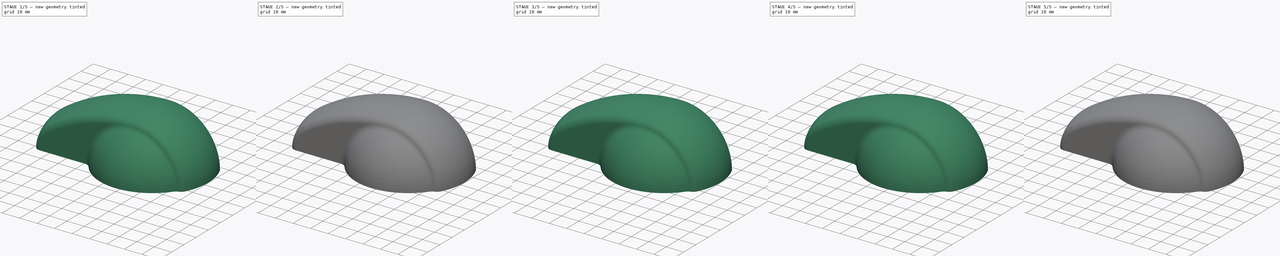
[diagram: build sequence overview — one tinted view per stage of 5, left to right]
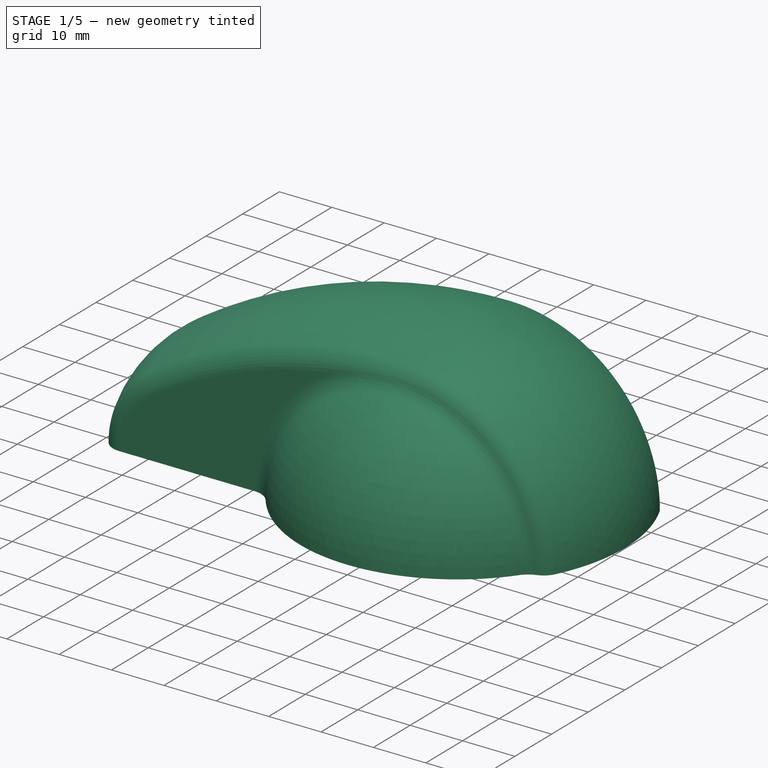
[diagram: stage 1 of 5 — iso view after this stage's code; geometry added in this stage tinted green]
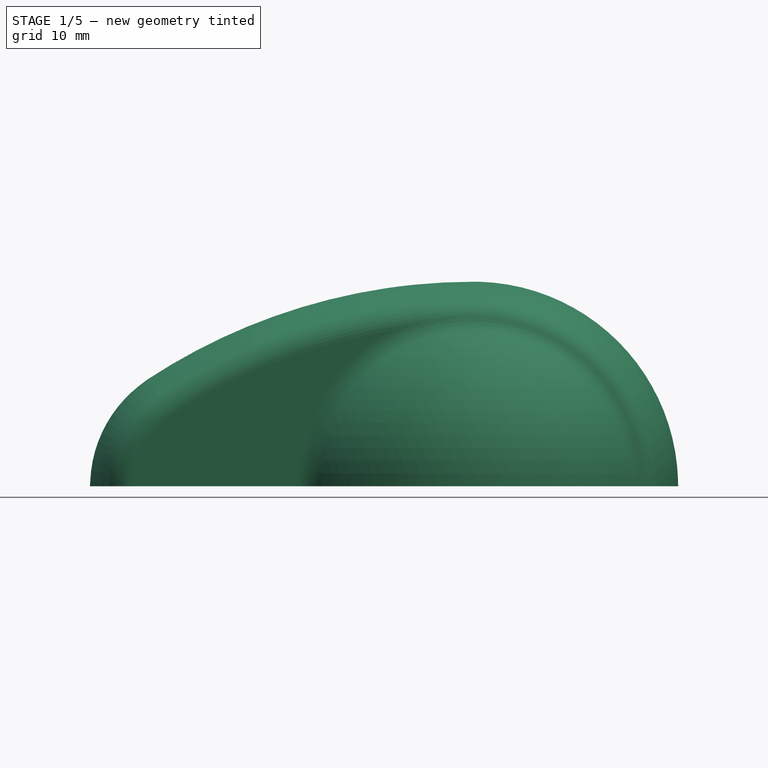
[diagram: stage 1 of 5 — front view after this stage's code; geometry added in this stage tinted green]
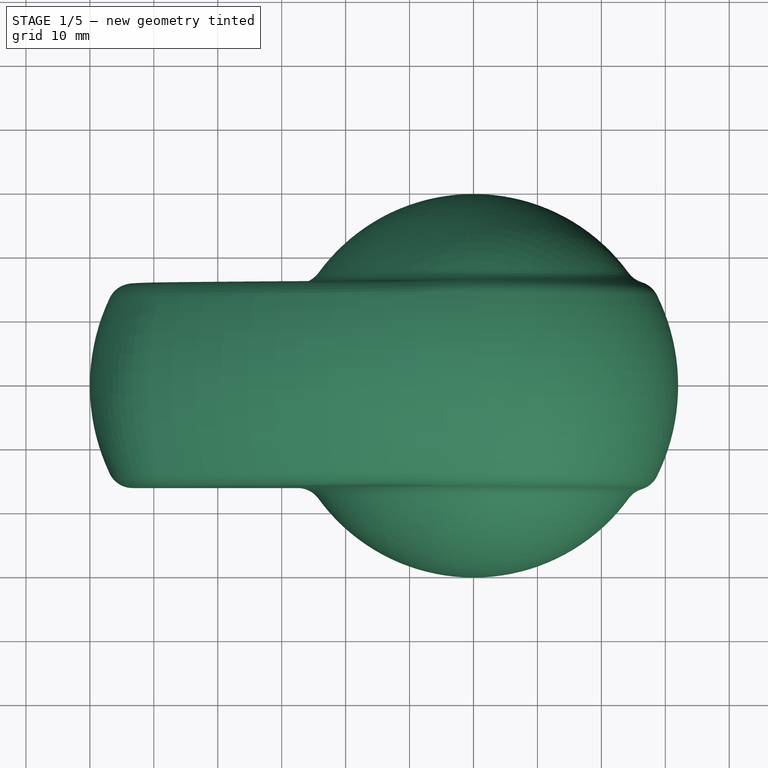
[diagram: stage 1 of 5 — top view after this stage's code; geometry added in this stage tinted green]
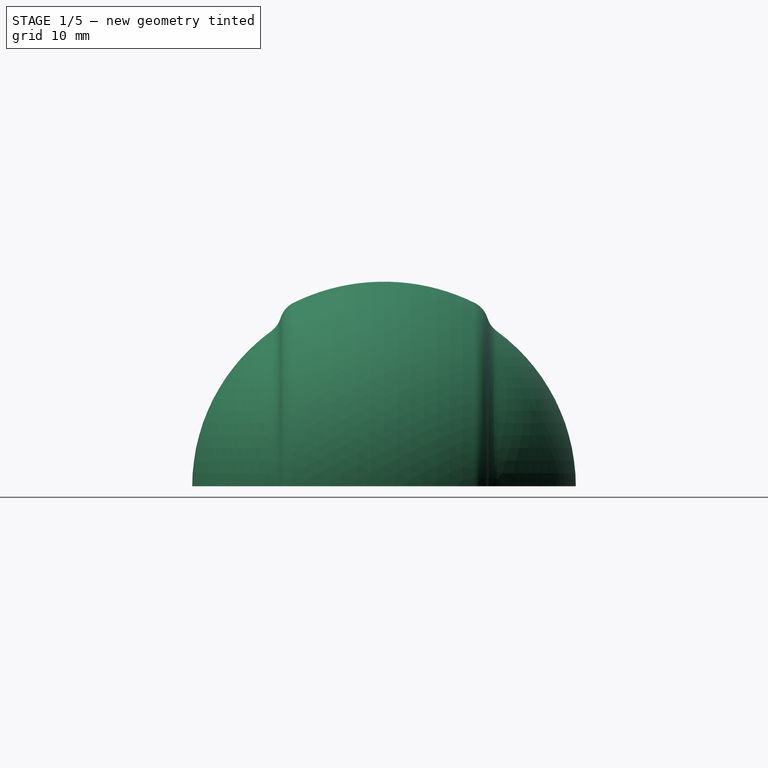
[diagram: stage 1 of 5 — right view after this stage's code; geometry added in this stage tinted green]
FCSTD DOCUMENT  (FreeCAD 1.0R39319 (Git))
Label: Mania2006-New
License: All rights reserved
LicenseURL: https://en.wikipedia.org/wiki/All_rights_reserved
objects: Sketcher::SketchObject×14, PartDesign::Fillet×9, PartDesign::Pad×6, PartDesign::Body×6, PartDesign::SubtractivePipe×4, PartDesign::AdditiveSphere×4, PartDesign::SubShapeBinder×4, PartDesign::Boolean×4, PartDesign::PolarPattern×1
note: 117 computed .brp shape members not serialized (recipe doc carries the construction recipe); baked Part::Feature solids carry a one-line shape summary decoded from their .brp

FEATURE [Sketcher::SketchObject] Sketch  label="SweepBase"
  ArcFitTolerance = 1e-06
  AttachmentSupport = -> [XZ_Plane]
  FullyConstrained = false
  MakeInternals = false
  MapMode = 5
  Placement = pos=(0,0,0) rot=(1,0,0;1.5708rad)
  sketch-geometry (3):
    g0: ArcOfCircle CenterX=0 CenterY=0 CenterZ=0 NormalX=0 NormalY=0 NormalZ=1 AngleXU=0 Radius=32 StartAngle=0 EndAngle=1.5708
    g1: ArcOfCircle CenterX=-40 CenterY=0 CenterZ=0 NormalX=0 NormalY=0 NormalZ=1 AngleXU=0 Radius=20 StartAngle=2.15371 EndAngle=3.14159
    g2: ArcOfCircle CenterX=0 CenterY=-60.6667 CenterZ=0 NormalX=0 NormalY=0 NormalZ=1 AngleXU=0 Radius=92.6667 StartAngle=1.5708 EndAngle=2.15371
  constraints (9):
    c: Coincident(g0,g-1)
    c: PointOnObject(g0,g-1)
    c: PointOnObject(g1,g-1)
    c: Radius(g0) = 32
    c: Radius(g1) = 20
    c: DistanceX(g1,g0) = 92
    c: Tangent(g2,g0) = -1.5708
    c: Tangent(g2,g1) = -1.5708
    c: PointOnObject(g2,g-2)
FEATURE [Sketcher::SketchObject] Sketch002  label="base"
  ArcFitTolerance = 1e-06
  AttachmentSupport = -> [XY_Plane]
  ExternalGeometry = -> [Sketch]
  FullyConstrained = true
  MakeInternals = false
  MapMode = 5
  sketch-geometry (4):
    g0: LineSegment StartX=32 StartY=-16 StartZ=0 EndX=32 EndY=16 EndZ=0
    g1: LineSegment StartX=32 StartY=16 StartZ=0 EndX=-60 EndY=16 EndZ=0
    g2: LineSegment StartX=-60 StartY=16 StartZ=0 EndX=-60 EndY=-16 EndZ=0
    g3: LineSegment StartX=-60 StartY=-16 StartZ=0 EndX=32 EndY=-16 EndZ=0
  constraints (11):
    c: Coincident(g0,g1)
    c: Coincident(g1,g2)
    c: Coincident(g2,g3)
    c: Coincident(g3,g0)
    c: Vertical(g2)
    c: Horizontal(g1)
    c: Horizontal(g3)
    c: Symmetric(g0,g0,g-1)
    c: PointOnObject(g-4,g0)
    c: DistanceY(g0,g0) = 32
    c: PointOnObject(g-3,g2)
FEATURE [PartDesign::Pad] Pad
  Direction = (0,0,1)
  Length = 40
  Length2 = 10
  Profile = -> Sketch002
  ReferenceAxis = -> Sketch002 [N_Axis]
  Refine = true
  Suppressed = false
  Type = 0
FEATURE [Sketcher::SketchObject] Sketch003  label="R32_Outline"
  ArcFitTolerance = 1e-06
  AttachmentSupport = -> [YZ_Plane]
  ExternalGeometry = -> [Sketch,Sketch002]
  FullyConstrained = true
  MakeInternals = false
  MapMode = 5
  Placement = pos=(0,0,0) rot=(0.57735,0.57735,0.57735;2.0944rad)
  sketch-geometry (4):
    g0: ArcOfCircle CenterX=0 CenterY=0 CenterZ=0 NormalX=0 NormalY=0 NormalZ=1 AngleXU=0 Radius=32 StartAngle=1.0472 EndAngle=2.0944
    g1: LineSegment StartX=-16 StartY=27.7128 StartZ=0 EndX=-16 EndY=70 EndZ=0
    g2: LineSegment StartX=16 StartY=27.7128 StartZ=0 EndX=16 EndY=70 EndZ=0
    g3: LineSegment StartX=-16 StartY=70 StartZ=0 EndX=16 EndY=70 EndZ=0
  constraints (12):
    c: Coincident(g0,g-1)
    c: Vertical(g0,g-5)
    c: Vertical(g0,g-4)
    c: PointOnObject(g-3,g0)
    c: Coincident(g1,g0)
    c: Vertical(g1)
    c: Coincident(g2,g0)
    c: Vertical(g2)
    c: Coincident(g3,g1)
    c: Coincident(g3,g2)
    c: Horizontal(g3)
    c: Distance(g-1,g3) = 70
FEATURE [PartDesign::SubtractivePipe] SubtractivePipe  label="R32Base"
  AuxilleryCurvelinear = true
  AuxillerySpineTangent = false
  BaseFeature = -> Pad
  Binormal = (0,0,0)
  Mode = 0
  Profile = -> Sketch003
  Refine = true
  Spine = -> Sketch
  SpineTangent = false
  Suppressed = false
  Transformation = 0
  Transition = 0
FEATURE [PartDesign::AdditiveSphere] Sphere  label="R30HalfSphere"
  Angle1 = 0
  Angle2 = 90
  Angle3 = 360
  AttacherType = Attacher::AttachEngine3D
  BaseFeature = -> SubtractivePipe
  Radius = 30
  Refine = true
  Suppressed = false
FEATURE [PartDesign::Fillet] Fillet  label="BaseFilletSphere4mm"
  Base = -> Sphere [Edge2,Edge18]
  BaseFeature = -> Sphere
  Radius = 4
  Refine = true
  SupportTransform = false
  Suppressed = false
  UseAllEdges = false
FEATURE [PartDesign::Fillet] Fillet001  label="BaseFillet4mm"
  Base = -> Fillet [Edge22,Edge5]
  BaseFeature = -> Fillet
  Radius = 4
  Refine = true
  SupportTransform = false
  Suppressed = false
  UseAllEdges = false
FEATURE [PartDesign::Body] Body002  label="RibBones"
  AllowCompound = false
  Group = -> [Sketch007,Pad002,Sketch008,Pad003,PolarPattern,Boolean]
  Origin = -> Origin002
  Tip = -> Boolean
FEATURE [PartDesign::Boolean] Boolean001
  Group = -> [Body]
  Refine = true
  Suppressed = false
  Type = 0
  UsePlacement = true
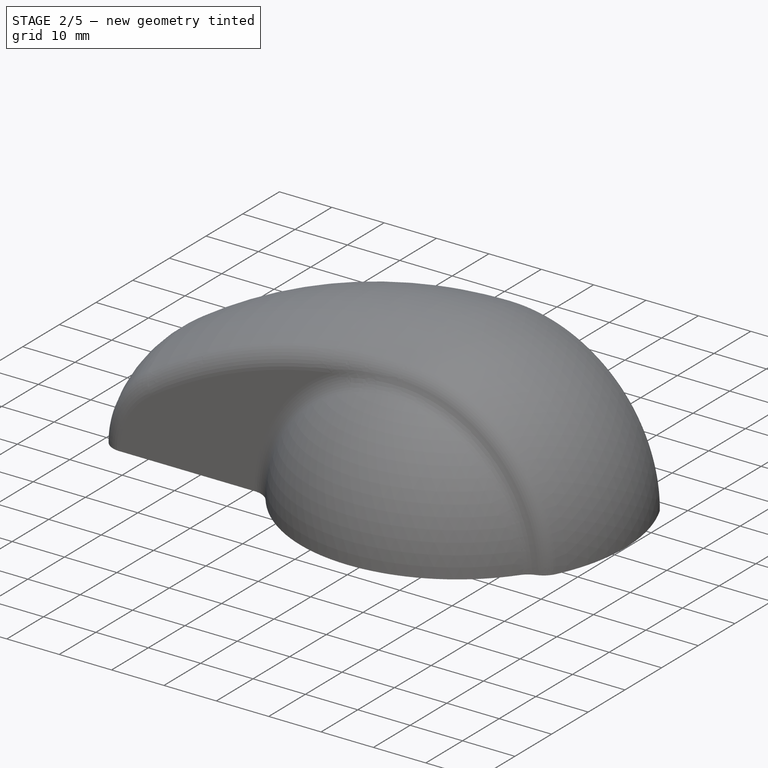
[diagram: stage 2 of 5 — iso view after this stage's code; geometry added in this stage tinted green]
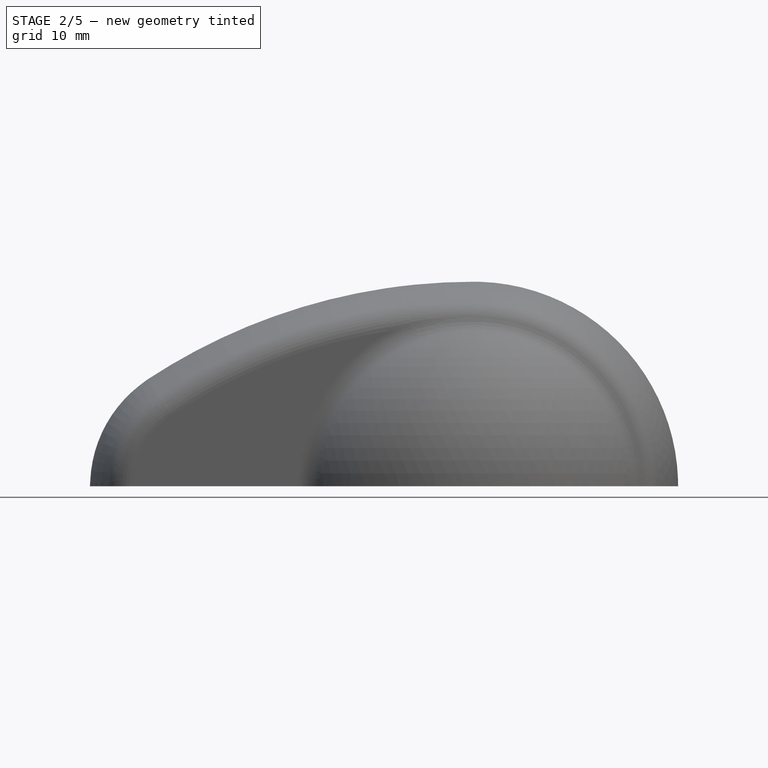
[diagram: stage 2 of 5 — front view after this stage's code; geometry added in this stage tinted green]
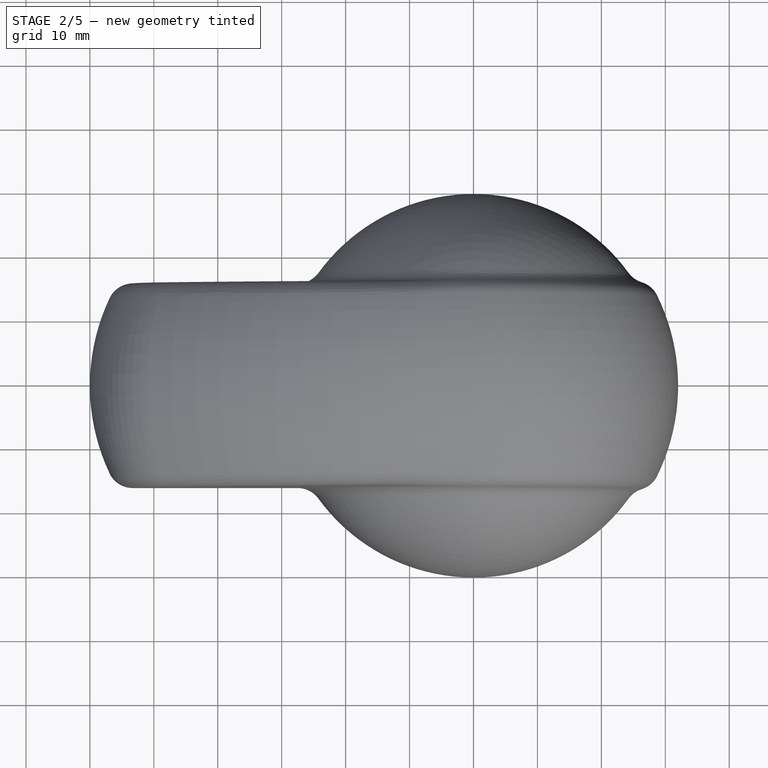
[diagram: stage 2 of 5 — top view after this stage's code; geometry added in this stage tinted green]
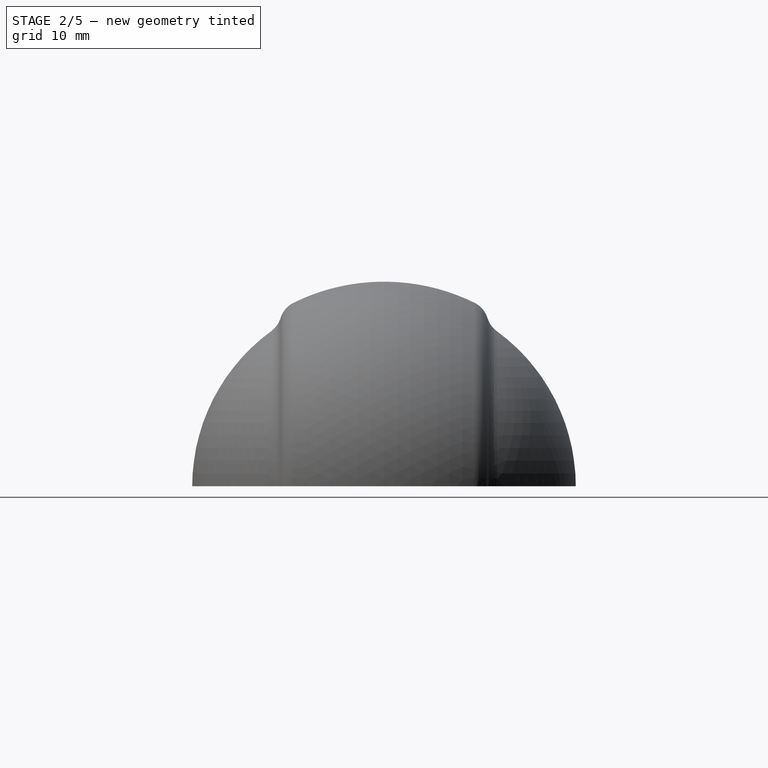
[diagram: stage 2 of 5 — right view after this stage's code; geometry added in this stage tinted green]
FEATURE [PartDesign::Body] Body  label="ShellOutline"
  AllowCompound = false
  Group = -> [Sketch,Sketch002,Pad,Sketch003,SubtractivePipe,Sphere,Fillet,Fillet001]
  Origin = -> Origin
  Tip = -> Fillet001
FEATURE [PartDesign::SubShapeBinder] Binder
  BindCopyOnChange = 0
  BindMode = 0
  ClaimChildren = false
  Context = -> Body001 [Binder.]
  Fuse = false
  MakeFace = true
  OffsetFill = false
  OffsetIntersection = false
  OffsetJoinType = 0
  OffsetOpenResult = false
  PartialLoad = false
  Refine = true
  Relative = true
  Support = -> [Body[Sketch002.]]
  _Version = 2
FEATURE [Sketcher::SketchObject] Sketch004
  ArcFitTolerance = 1e-06
  AttachmentSupport = -> [XY_Plane001]
  ExternalGeometry = -> [Binder]
  FullyConstrained = true
  MakeInternals = false
  MapMode = 5
  sketch-geometry (4):
    g0: LineSegment StartX=28 StartY=-12 StartZ=0 EndX=28 EndY=12 EndZ=0
    g1: LineSegment StartX=28 StartY=12 StartZ=0 EndX=-56 EndY=12 EndZ=0
    g2: LineSegment StartX=-56 StartY=12 StartZ=0 EndX=-56 EndY=-12 EndZ=0
    g3: LineSegment StartX=-56 StartY=-12 StartZ=0 EndX=28 EndY=-12 EndZ=0
  constraints (11):
    c: Coincident(g0,g1)
    c: Coincident(g1,g2)
    c: Coincident(g2,g3)
    c: Coincident(g3,g0)
    c: Vertical(g2)
    c: Horizontal(g1)
    c: Horizontal(g3)
    c: Symmetric(g0,g0,g-1)
    c: Distance(g-4,g1) = 4
    c: Distance(g-3,g0) = 4
    c: Distance(g-5,g2) = 4
FEATURE [PartDesign::Pad] Pad001
  Direction = (0,0,1)
  Length = 40
  Length2 = 10
  Profile = -> Sketch004
  ReferenceAxis = -> Sketch004 [N_Axis]
  Refine = true
  Suppressed = false
  Type = 0
FEATURE [PartDesign::SubShapeBinder] Binder001
  BindCopyOnChange = 0
  BindMode = 0
  ClaimChildren = false
  Context = -> Body001 [Binder001.]
  Fuse = false
  MakeFace = true
  OffsetFill = false
  OffsetIntersection = false
  OffsetJoinType = 0
  OffsetOpenResult = false
  PartialLoad = false
  Refine = true
  Relative = true
  Support = -> [Body[Sketch.]]
  _Version = 2
FEATURE [Sketcher::SketchObject] Sketch005
  ArcFitTolerance = 1e-06
  AttachmentSupport = -> [XZ_Plane001]
  ExternalGeometry = -> [Binder001]
  FullyConstrained = true
  MakeInternals = false
  MapMode = 5
  Placement = pos=(0,0,0) rot=(1,0,0;1.5708rad)
  sketch-geometry (3):
    g0: ArcOfCircle CenterX=0 CenterY=0 CenterZ=0 NormalX=0 NormalY=0 NormalZ=1 AngleXU=0 Radius=28 StartAngle=0 EndAngle=1.5708
    g1: ArcOfCircle CenterX=-40 CenterY=0 CenterZ=0 NormalX=0 NormalY=0 NormalZ=1 AngleXU=0 Radius=16 StartAngle=2.15371 EndAngle=3.14159
    g2: ArcOfCircle CenterX=-4.4085e-11 CenterY=-60.6667 CenterZ=0 NormalX=0 NormalY=0 NormalZ=1 AngleXU=0 Radius=88.6667 StartAngle=1.5708 EndAngle=2.15371
  constraints (9):
    c: PointOnObject(g0,g-1)
    c: DistanceX(g0,g-3) = 4
    c: PointOnObject(g0,g-2)
    c: Coincident(g0,g-1)
    c: Coincident(g1,g-5)
    c: PointOnObject(g1,g-1)
    c: DistanceX(g-5,g1) = 4
    c: Tangent(g2,g1) = -1.5708
    c: Tangent(g2,g0) = -1.5708
FEATURE [Sketcher::SketchObject] Sketch006
  ArcFitTolerance = 1e-06
  AttachmentSupport = -> [YZ_Plane001]
  ExternalGeometry = -> [Sketch005,Sketch004]
  FullyConstrained = true
  MakeInternals = false
  MapMode = 5
  Placement = pos=(0,0,0) rot=(0.57735,0.57735,0.57735;2.0944rad)
  sketch-geometry (4):
    g0: ArcOfCircle CenterX=0 CenterY=0 CenterZ=0 NormalX=0 NormalY=0 NormalZ=1 AngleXU=0 Radius=28 StartAngle=1.12789 EndAngle=2.01371
    g1: LineSegment StartX=-12 StartY=25.2982 StartZ=0 EndX=-12 EndY=55.2982 EndZ=0
    g2: LineSegment StartX=-12 StartY=55.2982 StartZ=0 EndX=12 EndY=55.2982 EndZ=0
    g3: LineSegment StartX=12 StartY=55.2982 StartZ=0 EndX=12 EndY=25.2982 EndZ=0
  constraints (12):
    c: Vertical(g0,g-4)
    c: PointOnObject(g-3,g0)
    c: Vertical(g0,g-4)
    c: Coincident(g0,g-1)
    c: Coincident(g0,g1)
    c: Coincident(g1,g2)
    c: Horizontal(g2)
    c: Coincident(g2,g3)
    c: Coincident(g3,g0)
    c: Vertical(g1)
    c: Vertical(g3)
    c: DistanceY(g3,g3) = 30
FEATURE [PartDesign::SubtractivePipe] SubtractivePipe001
  AuxilleryCurvelinear = true
  AuxillerySpineTangent = false
  BaseFeature = -> Pad001
  Binormal = (0,0,0)
  Mode = 0
  Profile = -> Sketch006
  Refine = true
  Spine = -> Sketch005
  SpineTangent = false
  Suppressed = false
  Transformation = 0
  Transition = 0
FEATURE [PartDesign::AdditiveSphere] Sphere001
  Angle1 = 0
  Angle2 = 90
  Angle3 = 360
  AttacherType = Attacher::AttachEngine3D
  BaseFeature = -> SubtractivePipe001
  Radius = 26
  Refine = true
  Suppressed = false
  expr: Radius = <<R30HalfSphere>>.Radius - 4 mm
FEATURE [PartDesign::Fillet] Fillet002
  Base = -> Sphere001 [Edge18,Edge2]
  BaseFeature = -> Sphere001
  Radius = 3
  Refine = true
  SupportTransform = false
  Suppressed = false
  UseAllEdges = false
FEATURE [PartDesign::Fillet] Fillet003
  Base = -> Fillet002 [Edge5,Edge22]
  BaseFeature = -> Fillet002
  Radius = 3
  Refine = true
  SupportTransform = false
  Suppressed = false
  UseAllEdges = false
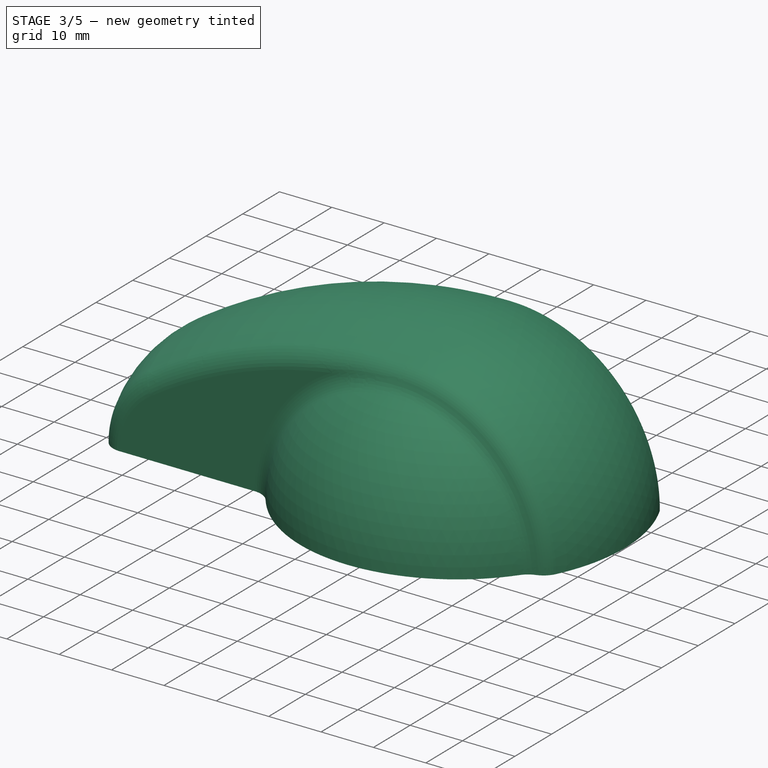
[diagram: stage 3 of 5 — iso view after this stage's code; geometry added in this stage tinted green]
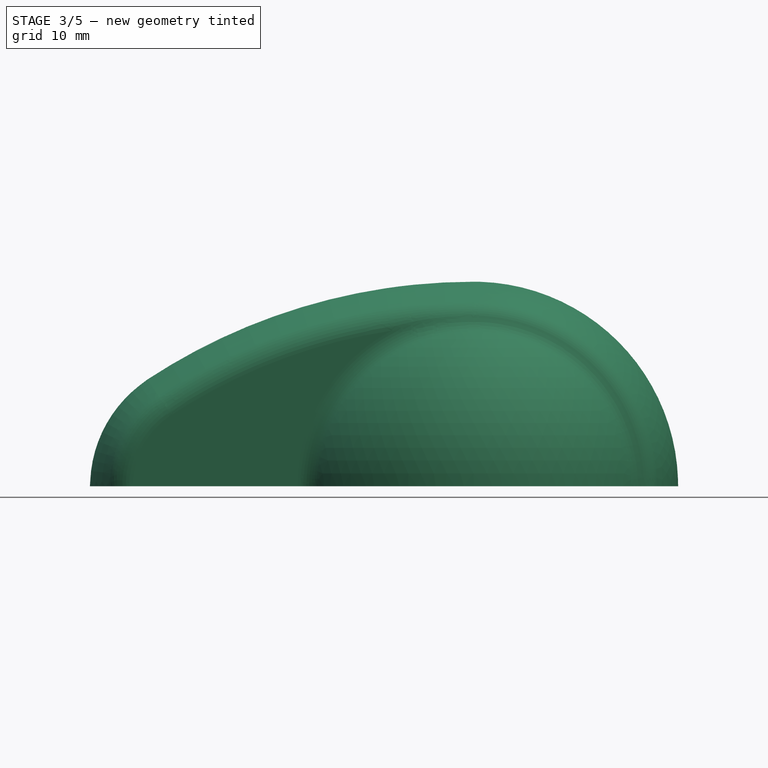
[diagram: stage 3 of 5 — front view after this stage's code; geometry added in this stage tinted green]
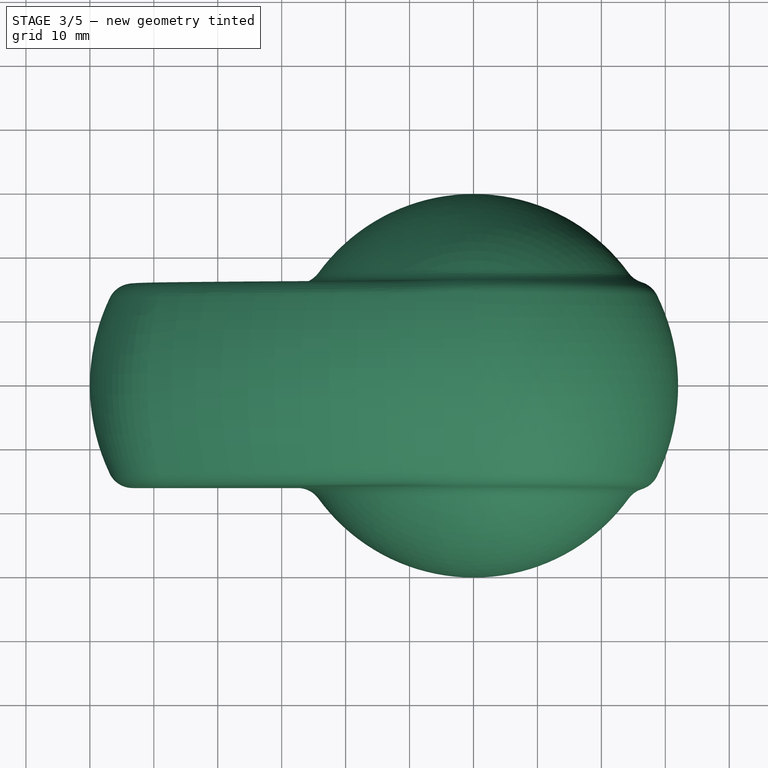
[diagram: stage 3 of 5 — top view after this stage's code; geometry added in this stage tinted green]
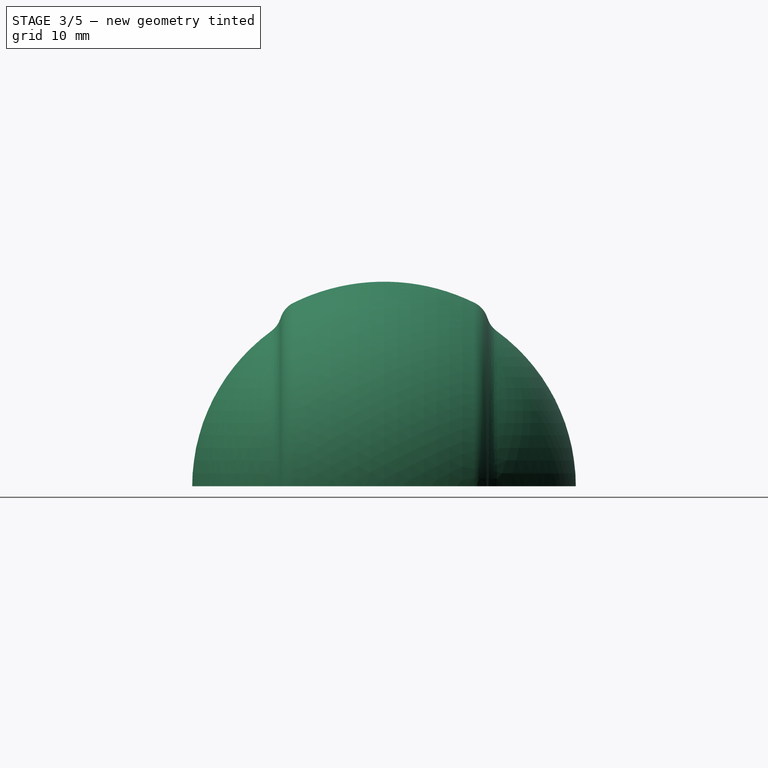
[diagram: stage 3 of 5 — right view after this stage's code; geometry added in this stage tinted green]
FEATURE [PartDesign::SubShapeBinder] Binder002
  BindCopyOnChange = 0
  BindMode = 0
  ClaimChildren = false
  Context = -> Body005 [Boolean003.Body002.Boolean.Body004.Binder002.]
  Fuse = false
  MakeFace = true
  OffsetFill = false
  OffsetIntersection = false
  OffsetJoinType = 0
  OffsetOpenResult = false
  PartialLoad = false
  Refine = true
  Relative = true
  Support = -> [Body003[Sketch010.]]
  _Version = 2
FEATURE [PartDesign::SubShapeBinder] Binder003
  BindCopyOnChange = 0
  BindMode = 0
  ClaimChildren = false
  Context = -> Body005 [Boolean003.Body002.Boolean.Body004.Binder003.]
  Fuse = false
  MakeFace = true
  OffsetFill = false
  OffsetIntersection = false
  OffsetJoinType = 0
  OffsetOpenResult = false
  PartialLoad = false
  Refine = true
  Relative = true
  Support = -> [Body003[Sketch009.]]
  _Version = 2
FEATURE [Sketcher::SketchObject] Sketch009  label="SweepBase001"
  ArcFitTolerance = 1e-06
  AttachmentSupport = -> [XZ_Plane003]
  FullyConstrained = false
  MakeInternals = false
  MapMode = 5
  Placement = pos=(0,0,0) rot=(1,0,0;1.5708rad)
  sketch-geometry (3):
    g0: ArcOfCircle CenterX=0 CenterY=0 CenterZ=0 NormalX=0 NormalY=0 NormalZ=1 AngleXU=0 Radius=32 StartAngle=0 EndAngle=1.5708
    g1: ArcOfCircle CenterX=-40 CenterY=0 CenterZ=0 NormalX=0 NormalY=0 NormalZ=1 AngleXU=0 Radius=20 StartAngle=2.15371 EndAngle=3.14159
    g2: ArcOfCircle CenterX=0 CenterY=-60.6667 CenterZ=0 NormalX=0 NormalY=0 NormalZ=1 AngleXU=0 Radius=92.6667 StartAngle=1.5708 EndAngle=2.15371
  constraints (9):
    c: Coincident(g0,g-1)
    c: PointOnObject(g0,g-1)
    c: PointOnObject(g1,g-1)
    c: Radius(g0) = 32
    c: Radius(g1) = 20
    c: DistanceX(g1,g0) = 92
    c: Tangent(g2,g0) = -1.5708
    c: Tangent(g2,g1) = -1.5708
    c: PointOnObject(g2,g-2)
FEATURE [Sketcher::SketchObject] Sketch010  label="base001"
  ArcFitTolerance = 1e-06
  AttachmentSupport = -> [XY_Plane003]
  ExternalGeometry = -> [Sketch009]
  FullyConstrained = true
  MakeInternals = false
  MapMode = 5
  sketch-geometry (4):
    g0: LineSegment StartX=32 StartY=-16 StartZ=0 EndX=32 EndY=16 EndZ=0
    g1: LineSegment StartX=32 StartY=16 StartZ=0 EndX=-60 EndY=16 EndZ=0
    g2: LineSegment StartX=-60 StartY=16 StartZ=0 EndX=-60 EndY=-16 EndZ=0
    g3: LineSegment StartX=-60 StartY=-16 StartZ=0 EndX=32 EndY=-16 EndZ=0
  constraints (11):
    c: Coincident(g0,g1)
    c: Coincident(g1,g2)
    c: Coincident(g2,g3)
    c: Coincident(g3,g0)
    c: Vertical(g2)
    c: Horizontal(g1)
    c: Horizontal(g3)
    c: Symmetric(g0,g0,g-1)
    c: PointOnObject(g-4,g0)
    c: DistanceY(g0,g0) = 32
    c: PointOnObject(g-3,g2)
FEATURE [PartDesign::Pad] Pad004
  Direction = (0,0,1)
  Length = 40
  Length2 = 10
  Profile = -> Sketch010
  ReferenceAxis = -> Sketch010 [N_Axis]
  Refine = true
  Suppressed = false
  Type = 0
FEATURE [Sketcher::SketchObject] Sketch013
  ArcFitTolerance = 1e-06
  AttachmentSupport = -> [XZ_Plane004]
  ExternalGeometry = -> [Binder003]
  FullyConstrained = true
  MakeInternals = false
  MapMode = 5
  Placement = pos=(0,0,0) rot=(1,0,0;1.5708rad)
  sketch-geometry (3):
    g0: ArcOfCircle CenterX=0 CenterY=0 CenterZ=0 NormalX=0 NormalY=0 NormalZ=1 AngleXU=0 Radius=28 StartAngle=0 EndAngle=1.5708
    g1: ArcOfCircle CenterX=-40 CenterY=0 CenterZ=0 NormalX=0 NormalY=0 NormalZ=1 AngleXU=0 Radius=16 StartAngle=2.15371 EndAngle=3.14159
    g2: ArcOfCircle CenterX=-4.4085e-11 CenterY=-60.6667 CenterZ=0 NormalX=0 NormalY=0 NormalZ=1 AngleXU=0 Radius=88.6667 StartAngle=1.5708 EndAngle=2.15371
  constraints (9):
    c: PointOnObject(g0,g-1)
    c: DistanceX(g0,g-3) = 4
    c: PointOnObject(g0,g-2)
    c: Coincident(g0,g-1)
    c: Coincident(g1,g-5)
    c: PointOnObject(g1,g-1)
    c: DistanceX(g-5,g1) = 4
    c: Tangent(g2,g1) = -1.5708
    c: Tangent(g2,g0) = -1.5708
FEATURE [Sketcher::SketchObject] Sketch014
  ArcFitTolerance = 1e-06
  AttachmentSupport = -> [YZ_Plane004]
  ExternalGeometry = -> [Sketch013,Sketch012]
  FullyConstrained = true
  MakeInternals = false
  MapMode = 5
  Placement = pos=(0,0,0) rot=(0.57735,0.57735,0.57735;2.0944rad)
  sketch-geometry (4):
    g0: ArcOfCircle CenterX=0 CenterY=0 CenterZ=0 NormalX=0 NormalY=0 NormalZ=1 AngleXU=0 Radius=28 StartAngle=1.12789 EndAngle=2.01371
    g1: LineSegment StartX=-12 StartY=25.2982 StartZ=0 EndX=-12 EndY=55.2982 EndZ=0
    g2: LineSegment StartX=-12 StartY=55.2982 StartZ=0 EndX=12 EndY=55.2982 EndZ=0
    g3: LineSegment StartX=12 StartY=55.2982 StartZ=0 EndX=12 EndY=25.2982 EndZ=0
  constraints (12):
    c: Vertical(g0,g-4)
    c: PointOnObject(g-3,g0)
    c: Vertical(g0,g-4)
    c: Coincident(g0,g-1)
    c: Coincident(g0,g1)
    c: Coincident(g1,g2)
    c: Horizontal(g2)
    c: Coincident(g2,g3)
    c: Coincident(g3,g0)
    c: Vertical(g1)
    c: Vertical(g3)
    c: DistanceY(g3,g3) = 30
FEATURE [PartDesign::SubtractivePipe] SubtractivePipe002  label="R32Base001"
  AuxilleryCurvelinear = true
  AuxillerySpineTangent = false
  BaseFeature = -> Pad004
  Binormal = (0,0,0)
  Mode = 0
  Profile = -> Sketch011
  Refine = true
  Spine = -> Sketch009
  SpineTangent = false
  Suppressed = false
  Transformation = 0
  Transition = 0
FEATURE [PartDesign::AdditiveSphere] Sphere002  label="R30HalfSphere001"
  Angle1 = 0
  Angle2 = 90
  Angle3 = 360
  AttacherType = Attacher::AttachEngine3D
  BaseFeature = -> SubtractivePipe002
  Radius = 30
  Refine = true
  Suppressed = false
FEATURE [PartDesign::Fillet] Fillet004  label="BaseFilletSphere4mm001"
  Base = -> Sphere002 [Edge2,Edge18]
  BaseFeature = -> Sphere002
  Radius = 4
  Refine = true
  SupportTransform = false
  Suppressed = false
  UseAllEdges = false
FEATURE [PartDesign::Fillet] Fillet005  label="BaseFillet4mm001"
  Base = -> Fillet004 [Edge22,Edge5]
  BaseFeature = -> Fillet004
  Radius = 4
  Refine = true
  SupportTransform = false
  Suppressed = false
  UseAllEdges = false
FEATURE [PartDesign::Boolean] Boolean002
  BaseFeature = -> Boolean001
  Group = -> [Body001]
  Refine = true
  Suppressed = false
  Type = 1
  UsePlacement = true
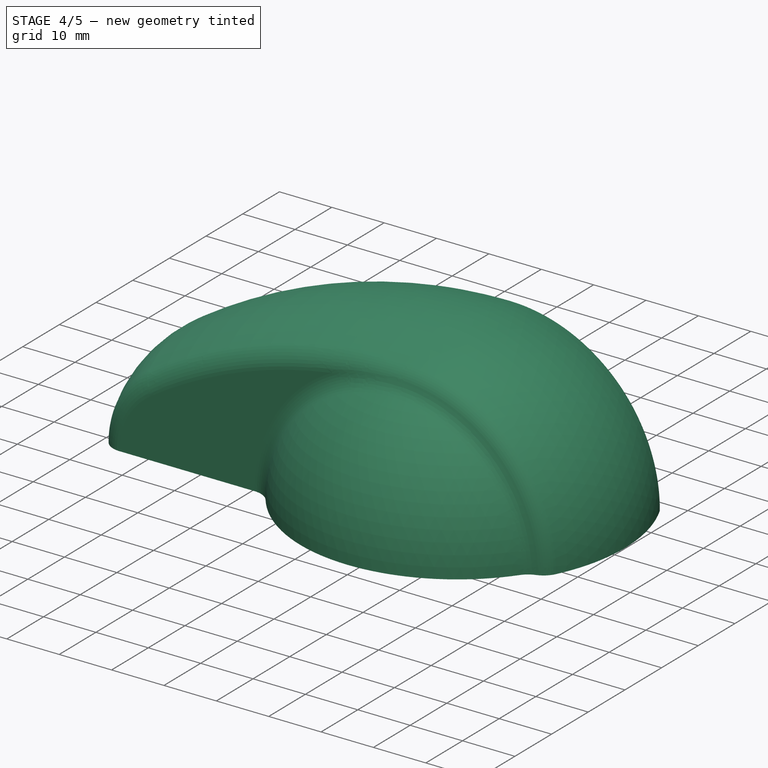
[diagram: stage 4 of 5 — iso view after this stage's code; geometry added in this stage tinted green]
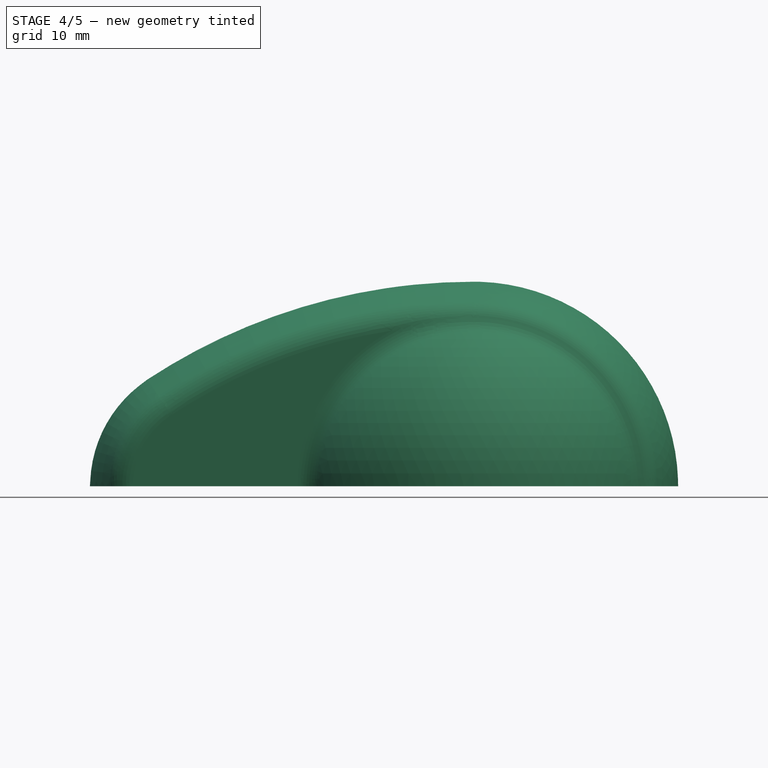
[diagram: stage 4 of 5 — front view after this stage's code; geometry added in this stage tinted green]
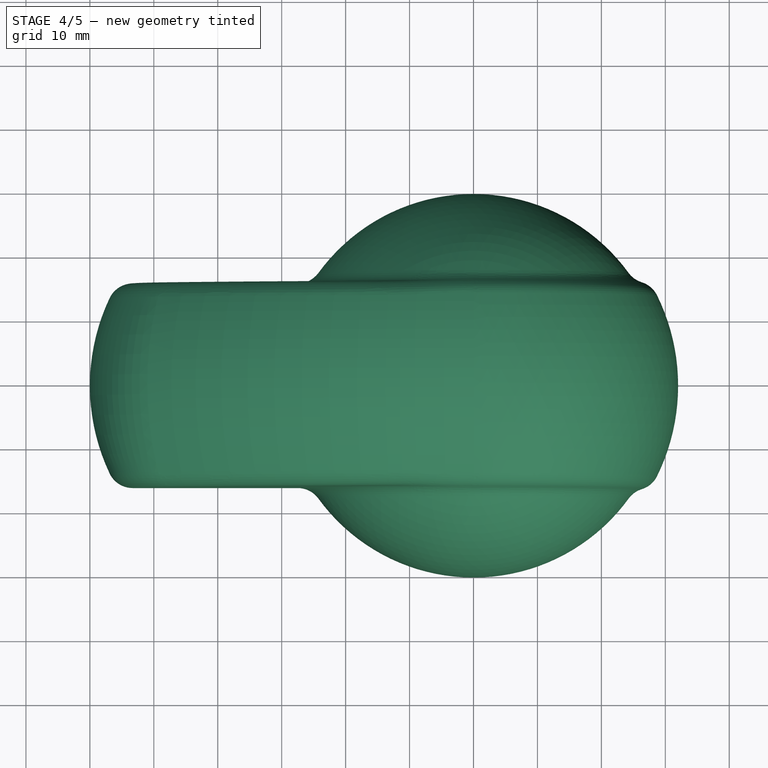
[diagram: stage 4 of 5 — top view after this stage's code; geometry added in this stage tinted green]
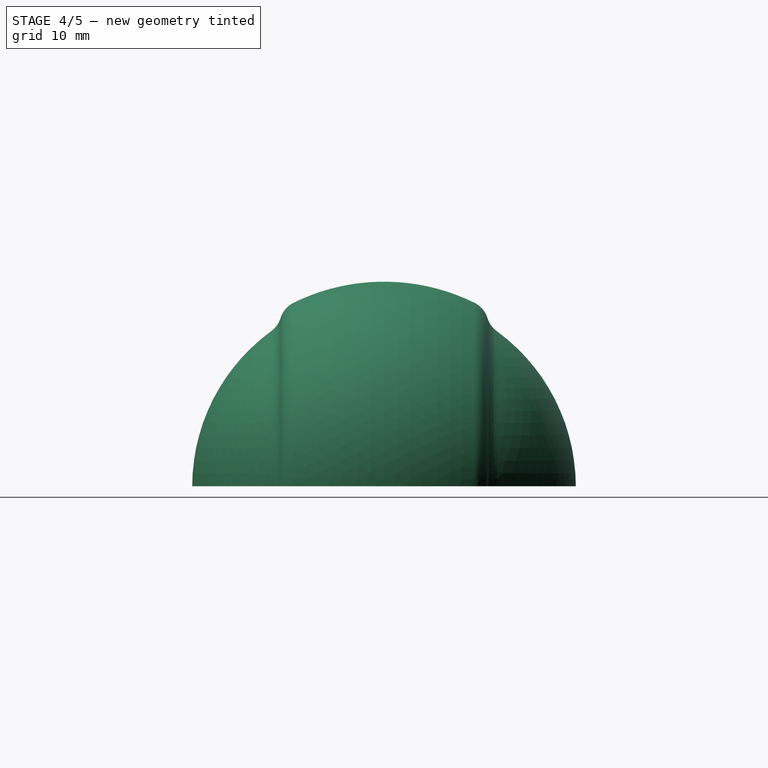
[diagram: stage 4 of 5 — right view after this stage's code; geometry added in this stage tinted green]
FEATURE [Sketcher::SketchObject] Sketch011  label="R32_Outline001"
  ArcFitTolerance = 1e-06
  AttachmentSupport = -> [YZ_Plane003]
  ExternalGeometry = -> [Sketch009,Sketch010]
  FullyConstrained = true
  MakeInternals = false
  MapMode = 5
  Placement = pos=(0,0,0) rot=(0.57735,0.57735,0.57735;2.0944rad)
  sketch-geometry (4):
    g0: ArcOfCircle CenterX=0 CenterY=0 CenterZ=0 NormalX=0 NormalY=0 NormalZ=1 AngleXU=0 Radius=32 StartAngle=1.0472 EndAngle=2.0944
    g1: LineSegment StartX=-16 StartY=27.7128 StartZ=0 EndX=-16 EndY=70 EndZ=0
    g2: LineSegment StartX=16 StartY=27.7128 StartZ=0 EndX=16 EndY=70 EndZ=0
    g3: LineSegment StartX=-16 StartY=70 StartZ=0 EndX=16 EndY=70 EndZ=0
  constraints (12):
    c: Coincident(g0,g-1)
    c: Vertical(g0,g-5)
    c: Vertical(g0,g-4)
    c: PointOnObject(g-3,g0)
    c: Coincident(g1,g0)
    c: Vertical(g1)
    c: Coincident(g2,g0)
    c: Vertical(g2)
    c: Coincident(g3,g1)
    c: Coincident(g3,g2)
    c: Horizontal(g3)
    c: Distance(g-1,g3) = 70
FEATURE [Sketcher::SketchObject] Sketch012
  ArcFitTolerance = 1e-06
  AttachmentSupport = -> [XY_Plane004]
  ExternalGeometry = -> [Binder002]
  FullyConstrained = true
  MakeInternals = false
  MapMode = 5
  sketch-geometry (4):
    g0: LineSegment StartX=28 StartY=-12 StartZ=0 EndX=28 EndY=12 EndZ=0
    g1: LineSegment StartX=28 StartY=12 StartZ=0 EndX=-56 EndY=12 EndZ=0
    g2: LineSegment StartX=-56 StartY=12 StartZ=0 EndX=-56 EndY=-12 EndZ=0
    g3: LineSegment StartX=-56 StartY=-12 StartZ=0 EndX=28 EndY=-12 EndZ=0
  constraints (11):
    c: Coincident(g0,g1)
    c: Coincident(g1,g2)
    c: Coincident(g2,g3)
    c: Coincident(g3,g0)
    c: Vertical(g2)
    c: Horizontal(g1)
    c: Horizontal(g3)
    c: Symmetric(g0,g0,g-1)
    c: Distance(g-4,g1) = 4
    c: Distance(g-3,g0) = 4
    c: Distance(g-5,g2) = 4
FEATURE [PartDesign::Pad] Pad005
  Direction = (0,0,1)
  Length = 40
  Length2 = 10
  Profile = -> Sketch012
  ReferenceAxis = -> Sketch012 [N_Axis]
  Refine = true
  Suppressed = false
  Type = 0
FEATURE [PartDesign::Body] Body003  label="ShellOutline001"
  AllowCompound = false
  Group = -> [Sketch009,Sketch010,Pad004,Sketch011,SubtractivePipe002,Sphere002,Fillet004,Fillet005]
  Origin = -> Origin003
  Tip = -> Fillet005
FEATURE [PartDesign::SubtractivePipe] SubtractivePipe003
  AuxilleryCurvelinear = true
  AuxillerySpineTangent = false
  BaseFeature = -> Pad005
  Binormal = (0,0,0)
  Mode = 0
  Profile = -> Sketch014
  Refine = true
  Spine = -> Sketch013
  SpineTangent = false
  Suppressed = false
  Transformation = 0
  Transition = 0
FEATURE [PartDesign::AdditiveSphere] Sphere003
  Angle1 = 0
  Angle2 = 90
  Angle3 = 360
  AttacherType = Attacher::AttachEngine3D
  BaseFeature = -> SubtractivePipe003
  Radius = 26
  Refine = true
  Suppressed = false
  expr: Radius = <<R30HalfSphere001>>.Radius - 4 mm
FEATURE [PartDesign::Fillet] Fillet006
  Base = -> Sphere003 [Edge18,Edge2]
  BaseFeature = -> Sphere003
  Radius = 3
  Refine = true
  SupportTransform = false
  Suppressed = false
  UseAllEdges = false
FEATURE [PartDesign::Fillet] Fillet007
  Base = -> Fillet006 [Edge5,Edge22]
  BaseFeature = -> Fillet006
  Radius = 3
  Refine = true
  SupportTransform = false
  Suppressed = false
  UseAllEdges = false
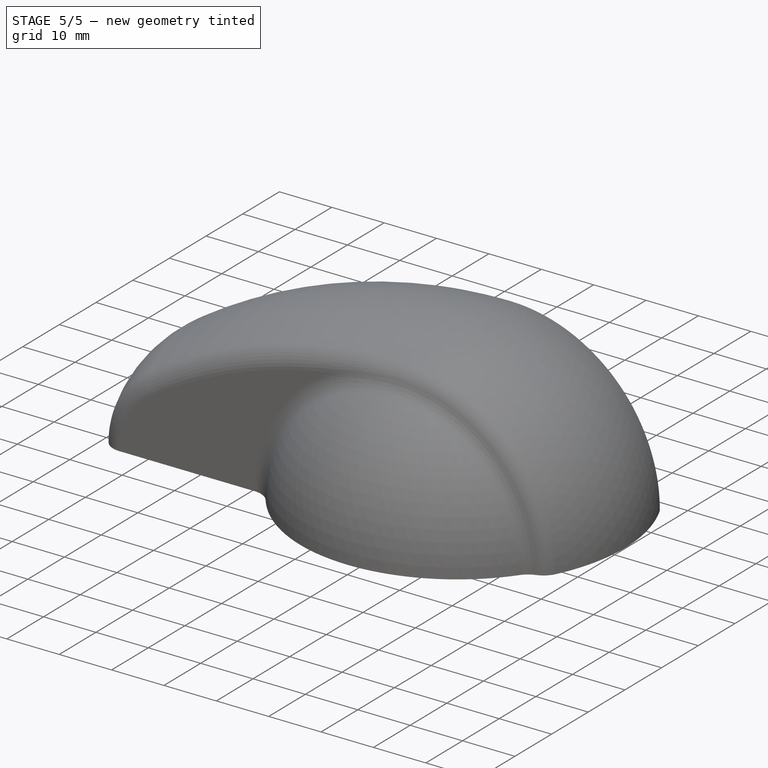
[diagram: stage 5 of 5 — iso view after this stage's code; geometry added in this stage tinted green]
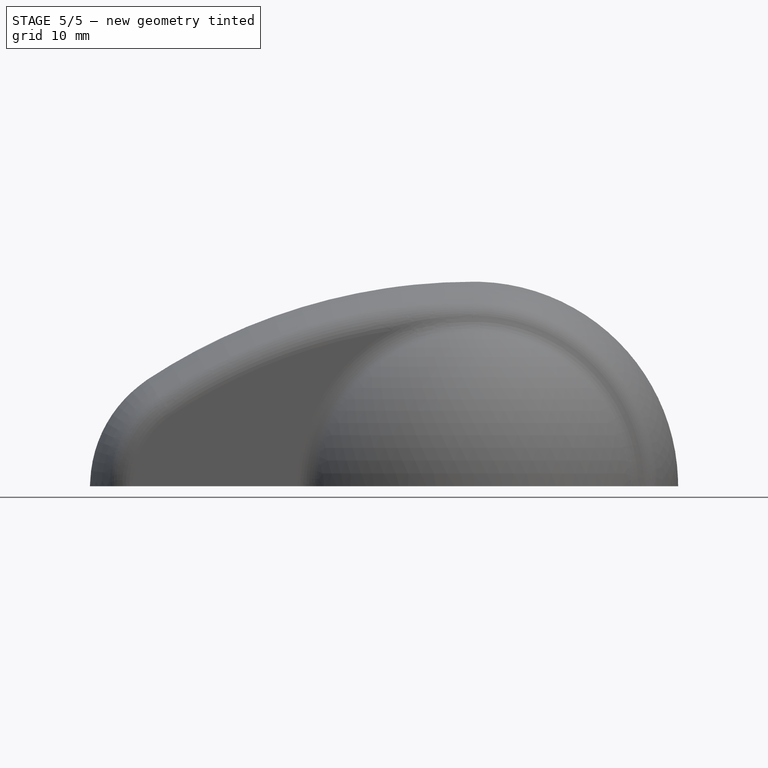
[diagram: stage 5 of 5 — front view after this stage's code; geometry added in this stage tinted green]
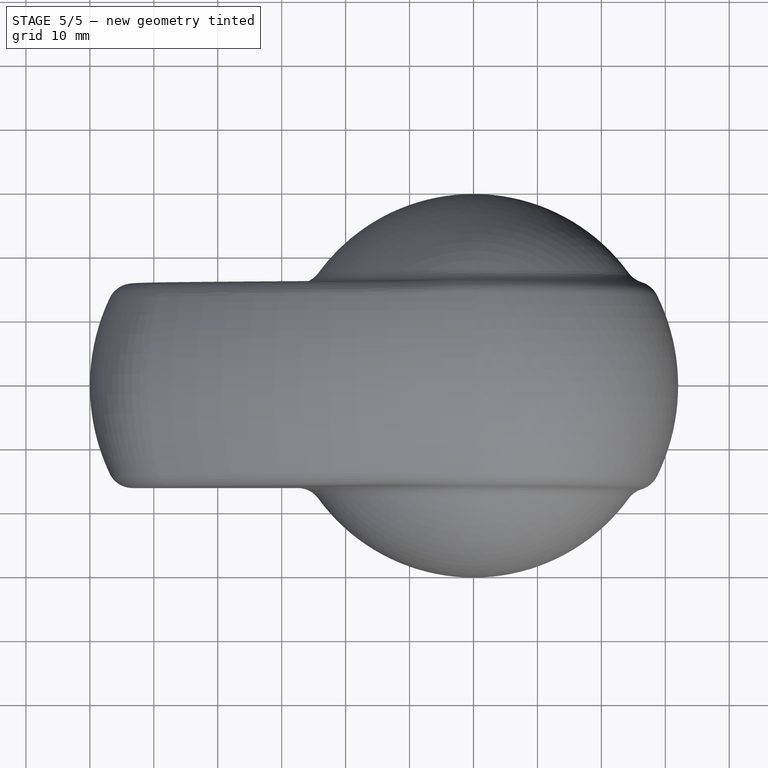
[diagram: stage 5 of 5 — top view after this stage's code; geometry added in this stage tinted green]
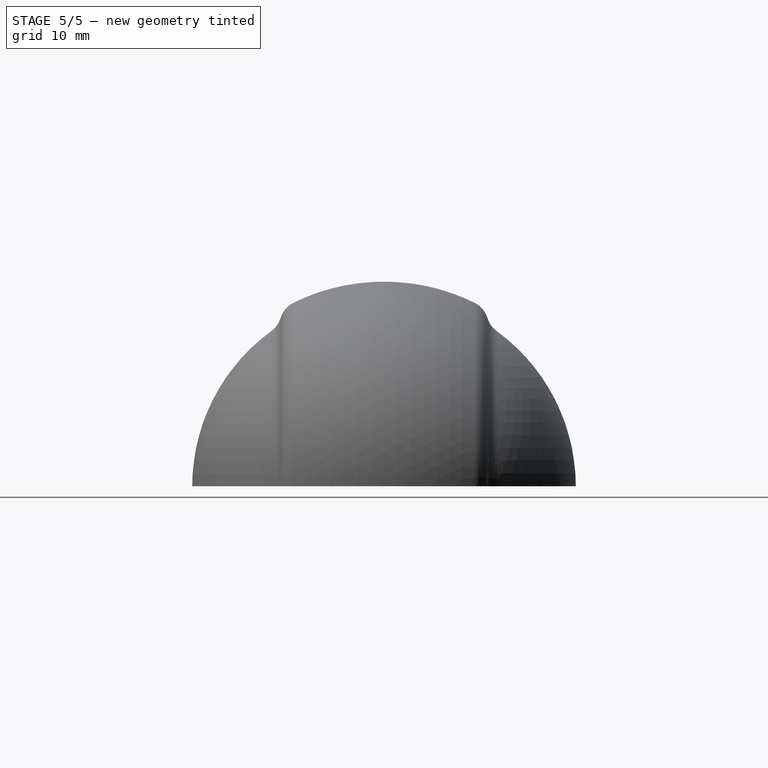
[diagram: stage 5 of 5 — right view after this stage's code; geometry added in this stage tinted green]
FEATURE [PartDesign::Body] Body001  label="ShellInner"
  AllowCompound = false
  Group = -> [Binder,Sketch004,Pad001,Binder001,Sketch005,Sketch006,SubtractivePipe001,Sphere001,Fillet002,Fillet003]
  Origin = -> Origin001
  Tip = -> Fillet003
FEATURE [Sketcher::SketchObject] Sketch007
  ArcFitTolerance = 1e-06
  AttachmentOffset = pos=(0,0,4) rot=(0,0,1;0rad)
  AttachmentSupport = -> [XY_Plane002]
  FullyConstrained = true
  MakeInternals = false
  MapMode = 5
  Placement = pos=(0,0,4) rot=(0,0,1;0rad)
  sketch-geometry (2):
    g0: Circle CenterX=0 CenterY=0 CenterZ=0 NormalX=0 NormalY=0 NormalZ=1 AngleXU=0 Radius=6
    g1: Circle CenterX=0 CenterY=0 CenterZ=0 NormalX=0 NormalY=0 NormalZ=1 AngleXU=0 Radius=10
  constraints (4):
    c: Coincident(g0,g-1)
    c: Diameter(g0) = 12
    c: Coincident(g1,g0)
    c: Distance(g0,g1) = 4
FEATURE [PartDesign::Pad] Pad002
  Direction = (0,0,1)
  Length = 40
  Length2 = 10
  Profile = -> Sketch007
  ReferenceAxis = -> Sketch007 [N_Axis]
  Refine = true
  Suppressed = false
  Type = 0
FEATURE [Sketcher::SketchObject] Sketch008
  ArcFitTolerance = 1e-06
  AttachmentOffset = pos=(0,0,4) rot=(0,0,1;0rad)
  AttachmentSupport = -> [XY_Plane002]
  ExternalGeometry = -> [Pad002]
  FullyConstrained = true
  MakeInternals = false
  MapMode = 5
  Placement = pos=(0,0,4) rot=(0,0,1;0rad)
  sketch-geometry (4):
    g0: LineSegment StartX=9.79796 StartY=2 StartZ=0 EndX=9.79796 EndY=-2 EndZ=0
    g1: LineSegment StartX=9.79796 StartY=-2 StartZ=0 EndX=39.798 EndY=-2 EndZ=0
    g2: LineSegment StartX=39.798 StartY=-2 StartZ=0 EndX=39.798 EndY=2 EndZ=0
    g3: LineSegment StartX=39.798 StartY=2 StartZ=0 EndX=9.79796 EndY=2 EndZ=0
  constraints (11):
    c: Coincident(g0,g1)
    c: Coincident(g1,g2)
    c: Coincident(g2,g3)
    c: Coincident(g3,g0)
    c: Vertical(g0)
    c: Horizontal(g1)
    c: Horizontal(g3)
    c: PointOnObject(g0,g-3)
    c: Distance(g0,g0) = 4
    c: Symmetric(g2,g1,g-1)
    c: DistanceX(g1,g1) = 30
FEATURE [PartDesign::Pad] Pad003
  BaseFeature = -> Pad002
  Direction = (0,0,1)
  Length = 40
  Length2 = 10
  Profile = -> Sketch008
  ReferenceAxis = -> Sketch008 [N_Axis]
  Refine = true
  Suppressed = false
  Type = 0
FEATURE [PartDesign::PolarPattern] PolarPattern
  Angle = 360
  Axis = -> Sketch008 [N_Axis]
  BaseFeature = -> Pad003
  Mode = 0
  Occurrences = 3
  Offset = 120
  Originals = -> [Pad003]
  Refine = true
  Suppressed = false
  TransformMode = 0
FEATURE [PartDesign::Body] Body004  label="ShellInner001"
  AllowCompound = false
  Group = -> [Binder002,Sketch012,Pad005,Binder003,Sketch013,Sketch014,SubtractivePipe003,Sphere003,Fillet006,Fillet007]
  Origin = -> Origin004
  Tip = -> Fillet007
FEATURE [PartDesign::Boolean] Boolean
  BaseFeature = -> PolarPattern
  Group = -> [Body004]
  Refine = true
  Suppressed = false
  Type = 2
  UsePlacement = true
FEATURE [PartDesign::Boolean] Boolean003
  BaseFeature = -> Boolean002
  Group = -> [Body002]
  Refine = true
  Suppressed = false
  Type = 0
  UsePlacement = true
FEATURE [PartDesign::Fillet] Fillet008
  Base = -> Boolean003 [Edge122,Edge93,Edge123,Edge124,Edge125,Edge82,Edge119,Edge120,Edge115,Edge112,Edge121,Edge132,Edge129,Edge130,Edge81,Edge133,Edge84,Edge83,Edge118,Edge117,Edge71,Edge113,Edge105,Edge106,Edge137,Edge107,Edge126,Edge35,Edge139]
  BaseFeature = -> Boolean003
  Radius = 1
  Refine = true
  SupportTransform = false
  Suppressed = false
  UseAllEdges = false
FEATURE [PartDesign::Body] Body005  label="Body"
  AllowCompound = false
  Group = -> [Boolean001,Boolean002,Boolean003,Fillet008]
  Origin = -> Origin005
  Tip = -> Fillet008
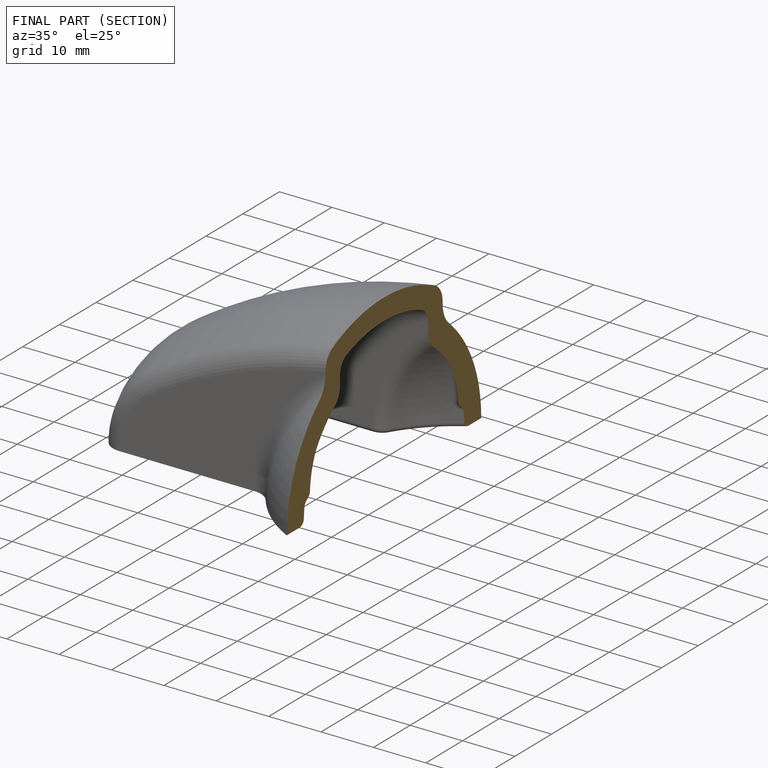
[diagram: finished part — half-section view (interior)]
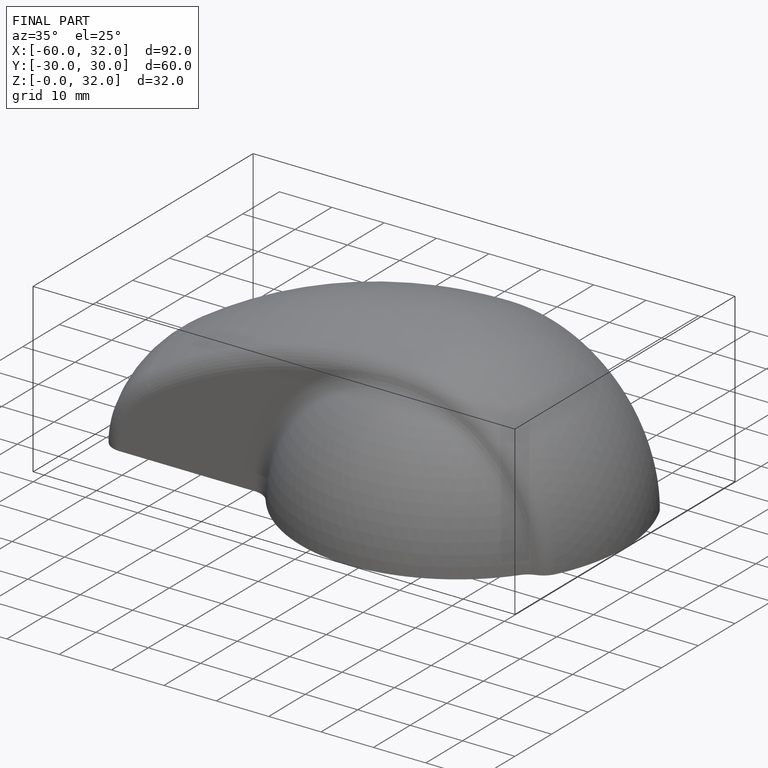
[diagram: finished part — iso view with bounding-box wireframe]
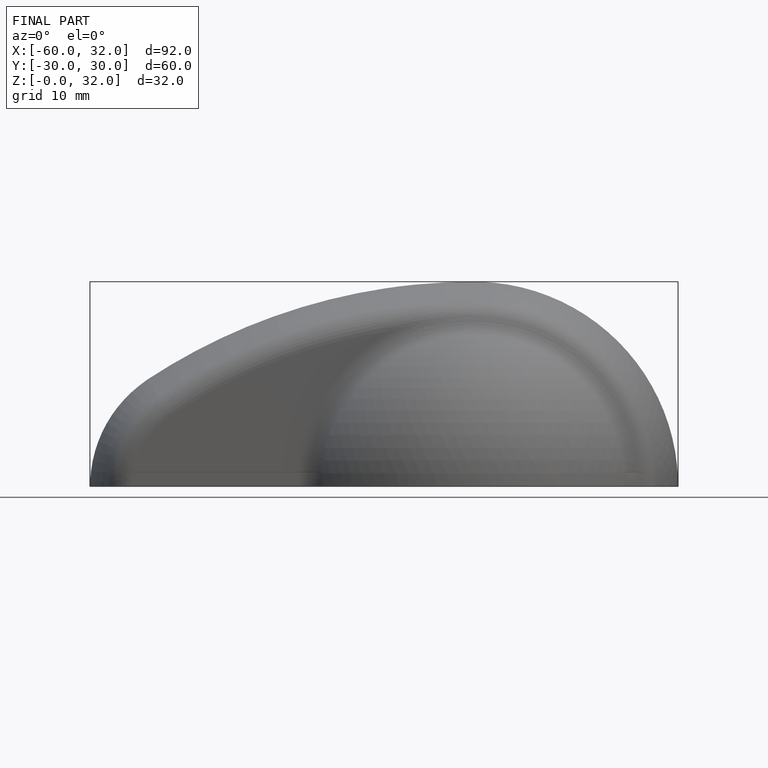
[diagram: finished part — front view with bounding-box wireframe]
